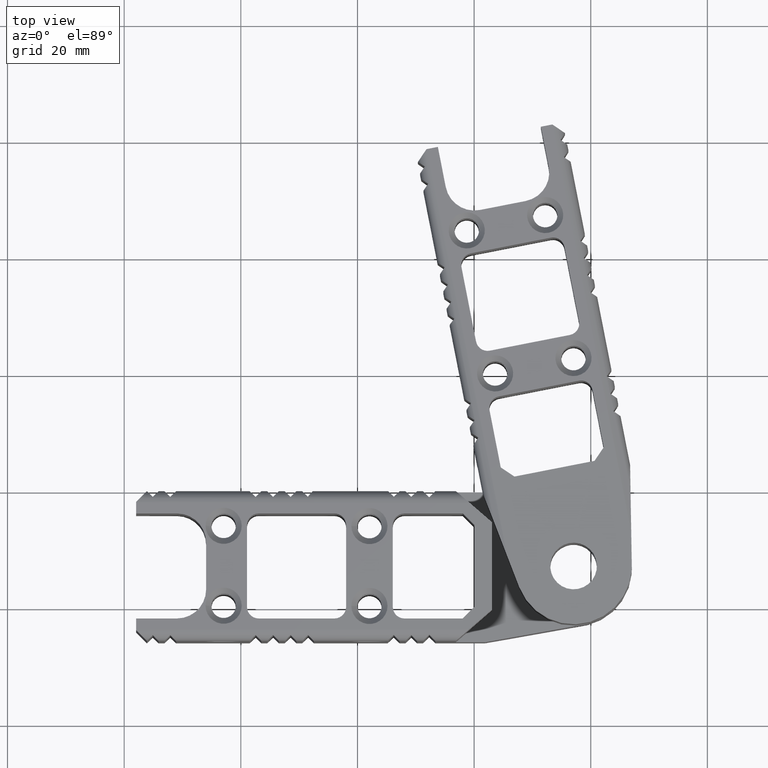
[diagram: clean part render]
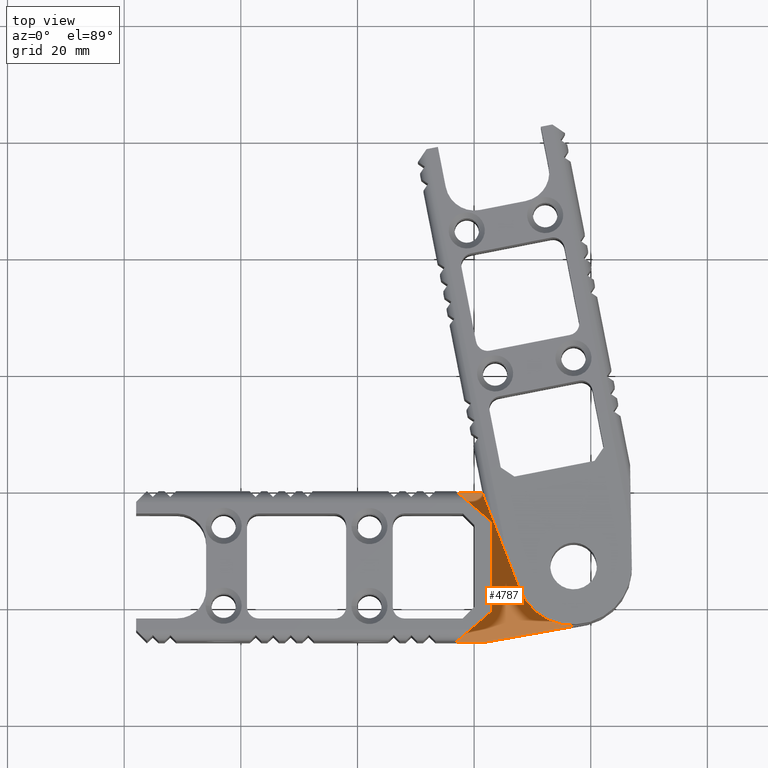
[diagram: same view with one face highlighted and labeled with its STEP entity id]
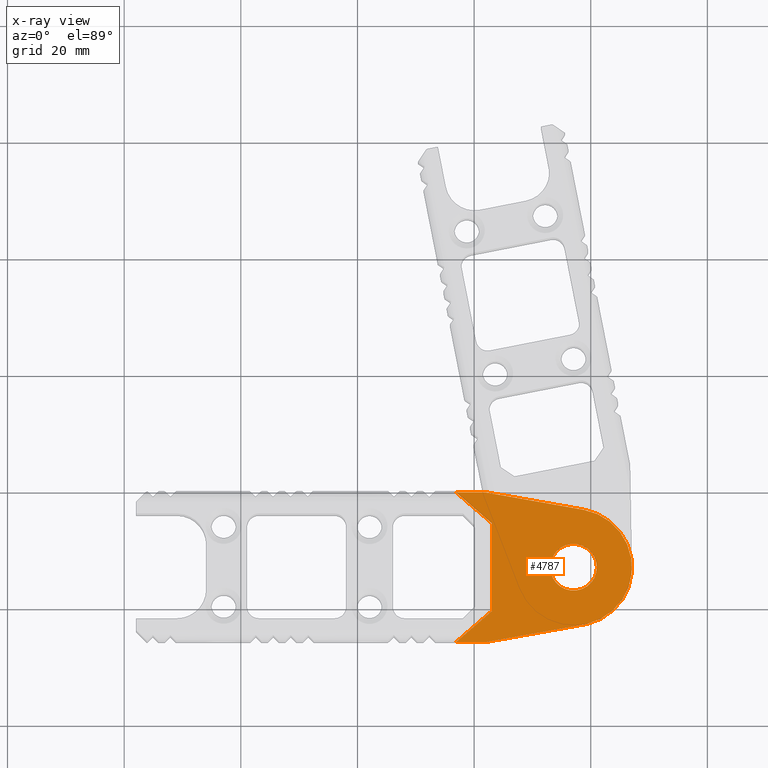
[diagram: x-ray of the same camera — body ghosted, the highlighted face saturated]
A machine part, top view. The second image highlights one B-rep face of the part: STEP entity #4787.
The next image is the same camera in x-ray: the body ghosted, the highlighted face saturated — about 0% of this face is hidden behind the body in this view.
In plain terms, the highlighted planar face has unit normal (-0, -0, -1).
Its self-contained STEP definition (entity closure, byte-faithful):
#103=PLANE('',#5247);
#203=FACE_BOUND('',#845,.T.);
#591=FACE_OUTER_BOUND('',#844,.T.);
#844=EDGE_LOOP('',(#3762,#3763,#3764,#3765,#3766,#3767,#3768,#3769));
#845=EDGE_LOOP('',(#3770,#3771));
#1037=LINE('',#7583,#1426);
#1039=LINE('',#7587,#1428);
#1044=LINE('',#7598,#1433);
#1110=LINE('',#7825,#1499);
#1116=LINE('',#7836,#1505);
#1180=LINE('',#8044,#1569);
#1181=LINE('',#8047,#1570);
#1426=VECTOR('',#5822,1000.);
#1428=VECTOR('',#5826,1000.);
#1433=VECTOR('',#5835,1000.);
#1499=VECTOR('',#6059,1000.);
#1505=VECTOR('',#6067,1000.);
#1569=VECTOR('',#6309,1000.);
#1570=VECTOR('',#6312,1000.);
#1819=CIRCLE('',#5059,4.);
#1820=CIRCLE('',#5060,4.);
#1842=CIRCLE('',#5248,10.0000000000002);
#1986=VERTEX_POINT('',#7506);
#1987=VERTEX_POINT('',#7507);
#2019=VERTEX_POINT('',#7580);
#2020=VERTEX_POINT('',#7582);
#2021=VERTEX_POINT('',#7586);
#2024=VERTEX_POINT('',#7593);
#2107=VERTEX_POINT('',#7823);
#2108=VERTEX_POINT('',#7828);
#2166=VERTEX_POINT('',#8043);
#2167=VERTEX_POINT('',#8045);
#2515=EDGE_CURVE('',#1986,#1987,#1819,.T.);
#2516=EDGE_CURVE('',#1987,#1986,#1820,.T.);
#2552=EDGE_CURVE('',#2020,#2019,#1037,.T.);
#2554=EDGE_CURVE('',#2021,#2020,#1039,.T.);
#2560=EDGE_CURVE('',#2024,#2021,#1044,.T.);
#2674=EDGE_CURVE('',#2107,#2019,#1110,.T.);
#2680=EDGE_CURVE('',#2024,#2108,#1116,.T.);
#2784=EDGE_CURVE('',#2166,#2107,#1180,.T.);
#2785=EDGE_CURVE('',#2167,#2166,#1842,.T.);
#2786=EDGE_CURVE('',#2108,#2167,#1181,.T.);
#3762=ORIENTED_EDGE('',*,*,#2554,.T.);
#3763=ORIENTED_EDGE('',*,*,#2552,.T.);
#3764=ORIENTED_EDGE('',*,*,#2674,.F.);
#3765=ORIENTED_EDGE('',*,*,#2784,.F.);
#3766=ORIENTED_EDGE('',*,*,#2785,.F.);
#3767=ORIENTED_EDGE('',*,*,#2786,.F.);
#3768=ORIENTED_EDGE('',*,*,#2680,.F.);
#3769=ORIENTED_EDGE('',*,*,#2560,.T.);
#3770=ORIENTED_EDGE('',*,*,#2515,.T.);
#3771=ORIENTED_EDGE('',*,*,#2516,.T.);
#4787=ADVANCED_FACE('',(#591,#203),#103,.F.);
#5059=AXIS2_PLACEMENT_3D('',#7508,#5763,#5764);
#5060=AXIS2_PLACEMENT_3D('',#7509,#5765,#5766);
#5247=AXIS2_PLACEMENT_3D('',#8042,#6307,#6308);
#5248=AXIS2_PLACEMENT_3D('',#8046,#6310,#6311);
#5763=DIRECTION('center_axis',(8.97069453928819E-15,-4.02105788955743E-15,
-1.));
#5764=DIRECTION('ref_axis',(-1.,6.07153216591875E-15,-8.97069453928822E-15));
#5765=DIRECTION('center_axis',(8.97069453928819E-15,-4.02105788955743E-15,
-1.));
#5766=DIRECTION('ref_axis',(-1.,6.07153216591875E-15,-8.97069453928822E-15));
#5822=DIRECTION('',(-0.755928272417223,-0.654654448514874,4.14879819033223E-15));
#5826=DIRECTION('',(5.83596119008473E-15,-1.,-4.02105788955747E-15));
#5835=DIRECTION('',(0.755928272417236,-0.654654448514859,-9.41360506060139E-15));
#6059=DIRECTION('',(-1.,5.80704913215184E-15,8.97069453928819E-15));
#6067=DIRECTION('',(1.,-5.720312958353E-15,-8.97069453928819E-15));
#6307=DIRECTION('center_axis',(-8.97069453928822E-15,-4.02105788955733E-15,
-1.));
#6308=DIRECTION('ref_axis',(-1.,5.720312958353E-15,8.97069453928819E-15));
#6309=DIRECTION('',(-0.984425357794938,-0.175803057226856,8.1240649112375E-15));
#6310=DIRECTION('center_axis',(8.97069453928819E-15,-4.02105788955743E-15,
-1.));
#6311=DIRECTION('ref_axis',(-1.,5.5511151231256E-15,-8.97069453928822E-15));
#6312=DIRECTION('',(0.984613006886141,-0.174749039112185,-9.53533852660024E-15));
#7506=CARTESIAN_POINT('',(21.9856697326637,16.6958976643066,12.8500000000003));
#7507=CARTESIAN_POINT('',(29.9856697326636,16.6958976643068,12.8500000000003));
#7508=CARTESIAN_POINT('Origin',(25.9856697326637,16.6958976643066,12.8500000000003));
#7509=CARTESIAN_POINT('Origin',(25.9856697326637,16.6958976643066,12.8500000000003));
#7580=CARTESIAN_POINT('',(5.8080346969489,3.84589766430721,12.8500000000003));
#7582=CARTESIAN_POINT('',(11.9856697326641,9.1958976643054,12.8500000000003));
#7583=CARTESIAN_POINT('',(11.9856697326641,9.1958976643054,12.8500000000003));
#7586=CARTESIAN_POINT('',(11.9856697326639,24.195897664306,12.8500000000003));
#7587=CARTESIAN_POINT('',(11.9856697326639,24.195897664306,12.8500000000003));
#7593=CARTESIAN_POINT('',(5.8080346969489,29.5458976643068,12.8500000000003));
#7598=CARTESIAN_POINT('',(5.8080346969489,29.5458976643068,12.8500000000003));
#7823=CARTESIAN_POINT('',(10.8080346969488,3.84589766430543,12.8500000000003));
#7825=CARTESIAN_POINT('',(5.8080346969489,3.84589766430721,12.8500000000003));
#7828=CARTESIAN_POINT('',(10.808034696949,29.5458976643059,12.8500000000003));
#7836=CARTESIAN_POINT('',(5.8080346969489,29.5458976643068,12.8500000000003));
#8042=CARTESIAN_POINT('Origin',(25.9856697326637,16.6958976643066,12.8500000000003));
#8043=CARTESIAN_POINT('',(28.3375136838242,6.97638995921213,12.8500000000003));
#8044=CARTESIAN_POINT('',(10.8080346969488,3.84589766430543,12.8500000000003));
#8045=CARTESIAN_POINT('',(27.7331601237858,26.5420277331685,12.8500000000003));
#8046=CARTESIAN_POINT('Origin',(25.9856697326637,16.6958976643066,12.8500000000003));
#8047=CARTESIAN_POINT('',(10.808034696949,29.5458976643059,12.8500000000003));